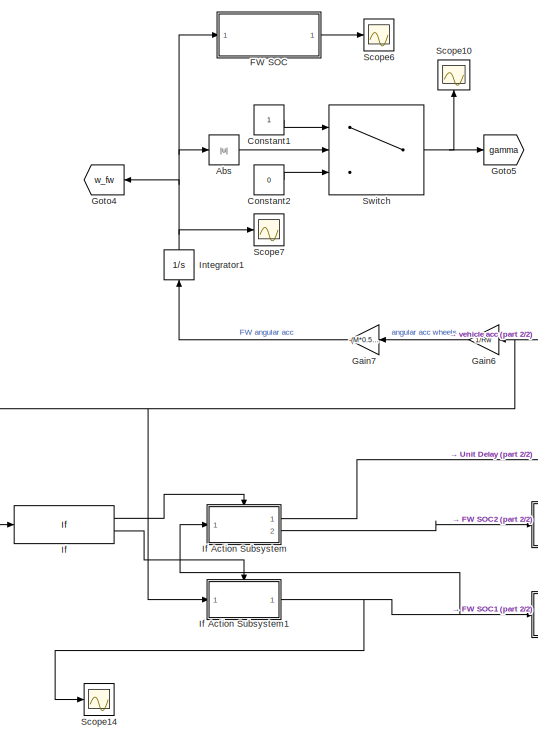
[diagram: root canvas - part 1/2, middle left region]
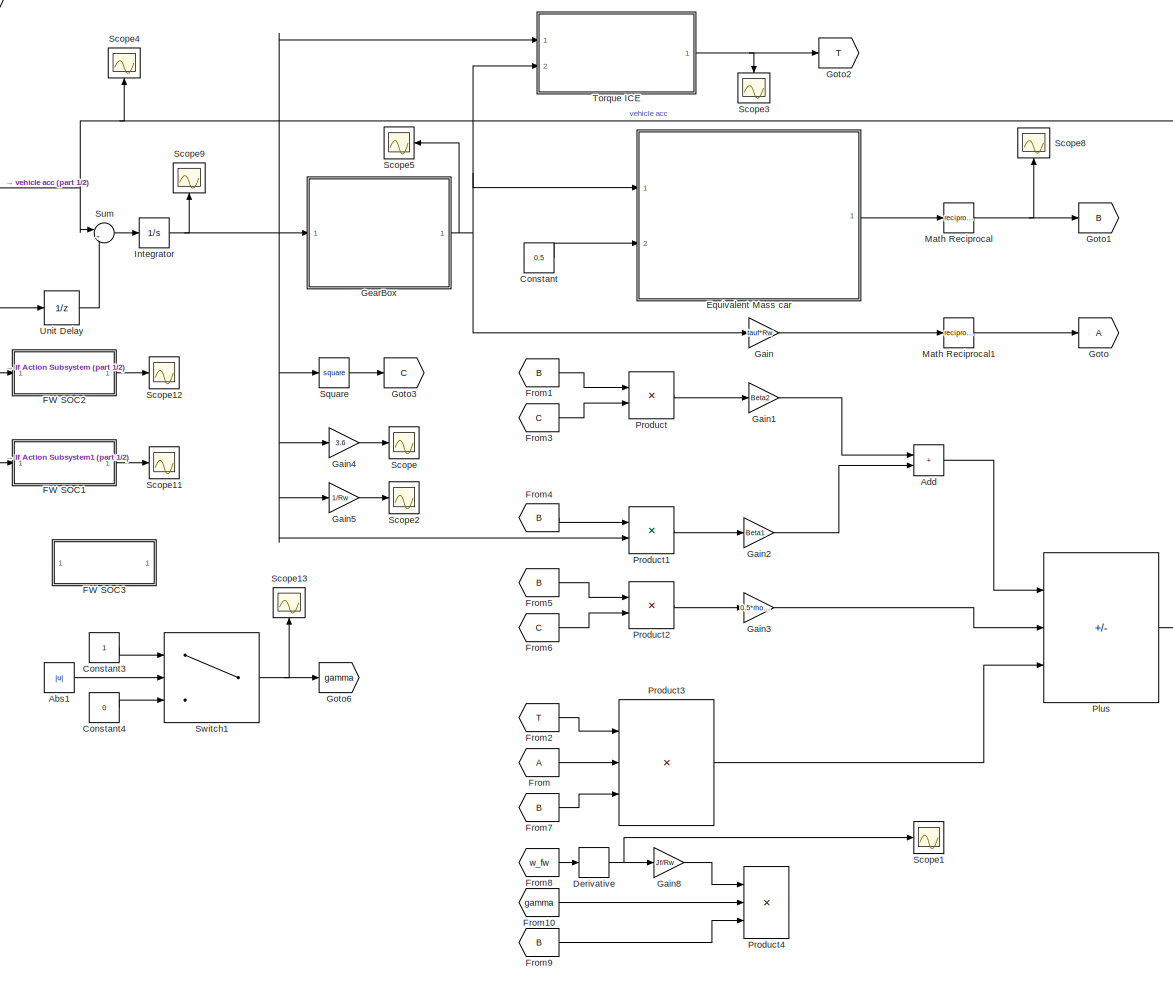
[diagram: root canvas - part 2/2, center side, full height]
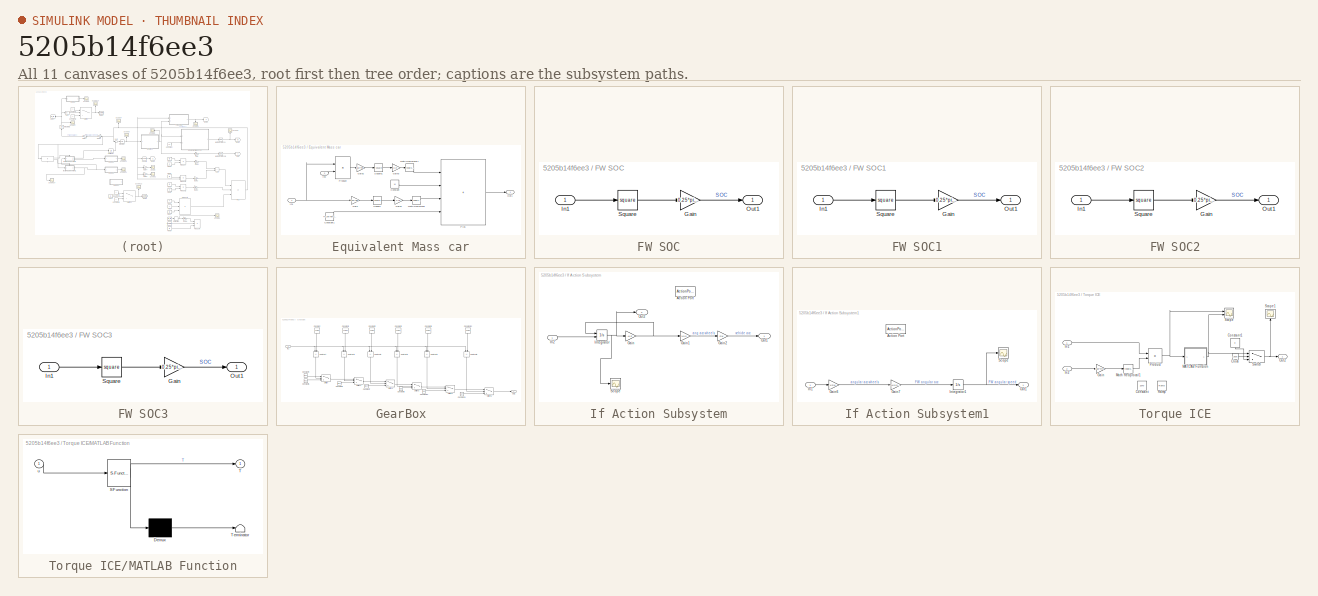
[diagram: thumbnail index - all 11 canvases of the model, root first then tree order]
MODEL slx_5205b14f6ee3
KIND model
CONFIG AbsTol = auto
CONFIG EnableMultiTasking = off
CONFIG FixedStep = auto
CONFIG MaxStep = auto
CONFIG MinStep = auto
CONFIG RelTol = 1e-3
CONFIG SampleTimeConstraint = Unconstrained
CONFIG Solver = VariableStepAuto
CONFIG SolverName = VariableStepAuto
CONFIG StartTime = 0.0
CONFIG StopTime = 20
BLOCK [Abs] Abs
  Commented = on
  SaturateOnIntegerOverflow = off
BLOCK [Abs] Abs1
  Commented = on
  SaturateOnIntegerOverflow = off
BLOCK [Sum] Add
  IconShape = rectangular
  Ports = [2, 1]
BLOCK [Constant] Constant
  Value = 0.5
BLOCK [Constant] Constant1
  Commented = on
BLOCK [Constant] Constant2
  Commented = on
  Value = 0
BLOCK [Constant] Constant3
  Commented = on
BLOCK [Constant] Constant4
  Commented = on
  Value = 0
BLOCK [Derivative] Derivative
  Commented = on
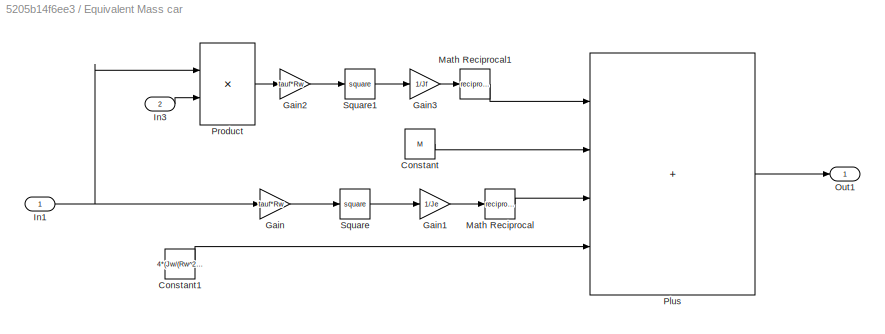
BLOCK [SubSystem] Equivalent Mass car
  Ports = [2, 1]
  RequestExecContextInheritance = off
BLOCK [Constant] Equivalent Mass car/Constant
  Value = M
BLOCK [Constant] Equivalent Mass car/Constant1
  Value = 4*(Jw/(Rw^2))
BLOCK [Gain] Equivalent Mass car/Gain
  Gain = tauf*Rw
BLOCK [Gain] Equivalent Mass car/Gain1
  Gain = 1/Je
BLOCK [Gain] Equivalent Mass car/Gain2
  Gain = tauf*Rw
BLOCK [Gain] Equivalent Mass car/Gain3
  Gain = 1/Jf
BLOCK [Inport] Equivalent Mass car/In1
BLOCK [Inport] Equivalent Mass car/In3
  Port = 2
BLOCK [Math] Equivalent Mass car/Math Reciprocal
  Operator = reciprocal
  Ports = [1, 1]
  SignedPower = on
BLOCK [Math] Equivalent Mass car/Math Reciprocal1
  Operator = reciprocal
  Ports = [1, 1]
  SignedPower = on
BLOCK [Outport] Equivalent Mass car/Out1
  VectorParamsAs1DForOutWhenUnconnected = off
BLOCK [Sum] Equivalent Mass car/Plus
  IconShape = rectangular
  Inputs = ++++
  Ports = [4, 1]
BLOCK [Product] Equivalent Mass car/Product
  Ports = [2, 1]
BLOCK [Math] Equivalent Mass car/Square
  Operator = square
  Ports = [1, 1]
  SignedPower = on
BLOCK [Math] Equivalent Mass car/Square1
  Operator = square
  Ports = [1, 1]
  SignedPower = on
BLOCK [SubSystem] FW SOC
  Commented = on
  Ports = [1, 1]
  RequestExecContextInheritance = off
BLOCK [Gain] FW SOC/Gain
  Gain = 0.25*pi*h*rho_fw*(r_o^4 - r_i^4)
BLOCK [Inport] FW SOC/In1
BLOCK [Outport] FW SOC/Out1
BLOCK [Math] FW SOC/Square
  Operator = square
  Ports = [1, 1]
BLOCK [SubSystem] FW SOC1
  Ports = [1, 1]
  RequestExecContextInheritance = off
BLOCK [Gain] FW SOC1/Gain
  Gain = 0.25*pi*h*rho_fw*(r_o^4 - r_i^4)
BLOCK [Inport] FW SOC1/In1
BLOCK [Outport] FW SOC1/Out1
BLOCK [Math] FW SOC1/Square
  Operator = square
  Ports = [1, 1]
BLOCK [SubSystem] FW SOC2
  Ports = [1, 1]
  RequestExecContextInheritance = off
BLOCK [Gain] FW SOC2/Gain
  Gain = 0.25*pi*h*rho_fw*(r_o^4 - r_i^4)
BLOCK [Inport] FW SOC2/In1
BLOCK [Outport] FW SOC2/Out1
BLOCK [Math] FW SOC2/Square
  Operator = square
  Ports = [1, 1]
BLOCK [SubSystem] FW SOC3
  Commented = on
  Ports = [1, 1]
  RequestExecContextInheritance = off
BLOCK [Gain] FW SOC3/Gain
  Gain = 0.25*pi*h*rho_fw*(r_o^4 - r_i^4)
BLOCK [Inport] FW SOC3/In1
BLOCK [Outport] FW SOC3/Out1
BLOCK [Math] FW SOC3/Square
  Operator = square
  Ports = [1, 1]
BLOCK [From] From
BLOCK [From] From1
  GotoTag = B
BLOCK [From] From10
  Commented = on
  GotoTag = gamma
BLOCK [From] From2
  GotoTag = T
BLOCK [From] From3
  GotoTag = C
BLOCK [From] From4
  GotoTag = B
BLOCK [From] From5
  GotoTag = B
BLOCK [From] From6
  GotoTag = C
BLOCK [From] From7
  GotoTag = B
BLOCK [From] From8
  Commented = on
  GotoTag = w_fw
BLOCK [From] From9
  Commented = on
  GotoTag = B
BLOCK [Gain] Gain
  Gain = tauf*Rw
BLOCK [Gain] Gain1
  Gain = Beta2
BLOCK [Gain] Gain2
  Gain = Beta1
BLOCK [Gain] Gain3
  Gain = 0.5*rho*Sf*Cx
BLOCK [Gain] Gain4
  Gain = 3.6
BLOCK [Gain] Gain5
  Gain = 1/Rw
BLOCK [Gain] Gain6
  Commented = on
  Gain = 1/Rw
  NameLocation = top
BLOCK [Gain] Gain7
  Commented = on
  Gain = -(M*0.5*Rw^2)/Jf
  NameLocation = top
BLOCK [Gain] Gain8
  Commented = on
  Gain = Jf/Rw
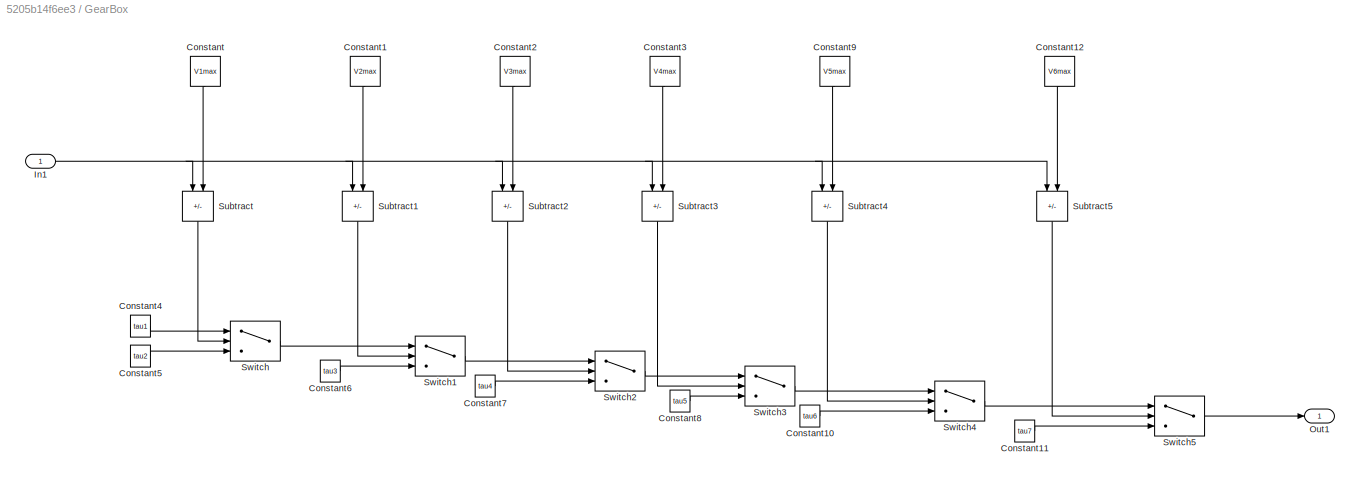
BLOCK [SubSystem] GearBox
  Ports = [1, 1]
  RequestExecContextInheritance = off
BLOCK [Constant] GearBox/Constant
  NameLocation = left
  Value = V1max
BLOCK [Constant] GearBox/Constant1
  NameLocation = left
  Value = V2max
BLOCK [Constant] GearBox/Constant10
  Value = tau6
BLOCK [Constant] GearBox/Constant11
  Value = tau7
BLOCK [Constant] GearBox/Constant12
  NameLocation = left
  Value = V6max
BLOCK [Constant] GearBox/Constant2
  NameLocation = left
  Value = V3max
BLOCK [Constant] GearBox/Constant3
  NameLocation = left
  Value = V4max
BLOCK [Constant] GearBox/Constant4
  Value = tau1
BLOCK [Constant] GearBox/Constant5
  Value = tau2
BLOCK [Constant] GearBox/Constant6
  Value = tau3
BLOCK [Constant] GearBox/Constant7
  Value = tau4
BLOCK [Constant] GearBox/Constant8
  Value = tau5
BLOCK [Constant] GearBox/Constant9
  NameLocation = left
  Value = V5max
BLOCK [Inport] GearBox/In1
BLOCK [Outport] GearBox/Out1
  VectorParamsAs1DForOutWhenUnconnected = off
BLOCK [Sum] GearBox/Subtract
  IconShape = rectangular
  Inputs = -+
  NameLocation = left
  Ports = [2, 1]
BLOCK [Sum] GearBox/Subtract1
  IconShape = rectangular
  Inputs = -+
  NameLocation = left
  Ports = [2, 1]
BLOCK [Sum] GearBox/Subtract2
  IconShape = rectangular
  Inputs = -+
  NameLocation = left
  Ports = [2, 1]
BLOCK [Sum] GearBox/Subtract3
  IconShape = rectangular
  Inputs = -+
  NameLocation = left
  Ports = [2, 1]
BLOCK [Sum] GearBox/Subtract4
  IconShape = rectangular
  Inputs = -+
  NameLocation = left
  Ports = [2, 1]
BLOCK [Sum] GearBox/Subtract5
  IconShape = rectangular
  Inputs = -+
  NameLocation = left
  Ports = [2, 1]
BLOCK [Switch] GearBox/Switch
  Criteria = u2 > Threshold
  InputSameDT = off
  SaturateOnIntegerOverflow = off
BLOCK [Switch] GearBox/Switch1
  Criteria = u2 > Threshold
  InputSameDT = off
  SaturateOnIntegerOverflow = off
BLOCK [Switch] GearBox/Switch2
  Criteria = u2 > Threshold
  InputSameDT = off
  SaturateOnIntegerOverflow = off
BLOCK [Switch] GearBox/Switch3
  Criteria = u2 > Threshold
  InputSameDT = off
  SaturateOnIntegerOverflow = off
BLOCK [Switch] GearBox/Switch4
  Criteria = u2 > Threshold
  InputSameDT = off
  SaturateOnIntegerOverflow = off
BLOCK [Switch] GearBox/Switch5
  Criteria = u2 > Threshold
  InputSameDT = off
  SaturateOnIntegerOverflow = off
BLOCK [Goto] Goto
BLOCK [Goto] Goto1
  GotoTag = B
BLOCK [Goto] Goto2
  GotoTag = T
BLOCK [Goto] Goto3
  GotoTag = C
BLOCK [Goto] Goto4
  Commented = on
  GotoTag = w_fw
  NameLocation = top
BLOCK [Goto] Goto5
  Commented = on
  GotoTag = gamma
BLOCK [Goto] Goto6
  Commented = on
  GotoTag = gamma
BLOCK [If] If
  IfExpression = u1 >= 0
  Ports = [1, 2]
BLOCK [SubSystem] If Action Subsystem
  Ports = [1, 2, 0, 0, 0, 0, 0, 1]
  RequestExecContextInheritance = off
  TreatAsAtomicUnit = on
BLOCK [ActionPort] If Action Subsystem/Action Port
  ActionPortLabel = if(u1 >= 0 )
BLOCK [Gain] If Action Subsystem/Gain
  Gain = -k/Jf
BLOCK [Gain] If Action Subsystem/Gain1
  Gain = 1/0.5
BLOCK [Gain] If Action Subsystem/Gain2
  Gain = Rw
BLOCK [Inport] If Action Subsystem/In2
BLOCK [Integrator] If Action Subsystem/Integrator
  InitialCondition = w_fw_max
  InitialConditionSource = external
  Ports = [2, 1]
BLOCK [Outport] If Action Subsystem/Out1
BLOCK [Outport] If Action Subsystem/Out2
  Port = 2
BLOCK [Scope] If Action Subsystem/Scope
  Floating = off
  NumInputPorts = 1
  Ports = [1]
  ScopeSpecificationString = Simulink.scopes.TimeScopeBlockCfg('CurrentConfiguration', extmgr.ConfigurationSet(extmgr.Configuration('Core','General UI',true),extmgr.Configuration('Core','Source UI',true),extmgr.Configuration('Sources','WiredSimulink',true,'DataLoggingVariableName','ScopeData13'),extmgr.Configuration('Visuals','Time Domain',true,'SerializedDisplays',{struct('MinYLimReal','53409.2547','MaxYLimReal','95765.66366...<+1494ch>
BLOCK [SubSystem] If Action Subsystem1
  Ports = [1, 1, 0, 0, 0, 0, 0, 1]
  RequestExecContextInheritance = off
  TreatAsAtomicUnit = on
BLOCK [ActionPort] If Action Subsystem1/Action Port
  ActionPortLabel = else
BLOCK [Gain] If Action Subsystem1/Gain6
  Gain = 1/Rw
BLOCK [Gain] If Action Subsystem1/Gain7
  Gain = -(M*0.5*Rw^2)/Jf
BLOCK [Inport] If Action Subsystem1/In1
BLOCK [Integrator] If Action Subsystem1/Integrator1
  Ports = [1, 1]
BLOCK [Outport] If Action Subsystem1/Out1
BLOCK [Scope] If Action Subsystem1/Scope
  Floating = off
  NumInputPorts = 1
  Ports = [1]
  ScopeSpecificationString = Simulink.scopes.TimeScopeBlockCfg('CurrentConfiguration', extmgr.ConfigurationSet(extmgr.Configuration('Core','General UI',true),extmgr.Configuration('Core','Source UI',true),extmgr.Configuration('Sources','WiredSimulink',true,'DataLoggingVariableName','ScopeData9'),extmgr.Configuration('Visuals','Time Domain',true,'SerializedDisplays',{struct('MinYLimReal','-9485.78445','MaxYLimReal','85372.06005...<+1426ch>
BLOCK [Integrator] Integrator
  InitialCondition = 42
  Ports = [1, 1]
BLOCK [Integrator] Integrator1
  Commented = on
  NameLocation = right
  Ports = [1, 1]
BLOCK [Math] Math Reciprocal
  Operator = reciprocal
  Ports = [1, 1]
  SignedPower = on
BLOCK [Math] Math Reciprocal1
  Operator = reciprocal
  Ports = [1, 1]
  SignedPower = on
BLOCK [Sum] Plus
  IconShape = rectangular
  Inputs = --+
  Ports = [3, 1]
BLOCK [Product] Product
  Ports = [2, 1]
BLOCK [Product] Product1
  Ports = [2, 1]
BLOCK [Product] Product2
  Ports = [2, 1]
BLOCK [Product] Product3
  Inputs = 3
  Ports = [3, 1]
BLOCK [Product] Product4
  Commented = on
  Inputs = 3
  Ports = [3, 1]
BLOCK [Scope] Scope
  Floating = off
  NumInputPorts = 1
  Ports = [1]
  ScopeSpecificationString = Simulink.scopes.TimeScopeBlockCfg('CurrentConfiguration', extmgr.ConfigurationSet(extmgr.Configuration('Core','General UI',true),extmgr.Configuration('Core','Source UI',true),extmgr.Configuration('Sources','WiredSimulink',true),extmgr.Configuration('Visuals','Time Domain',true,'SerializedDisplays',{struct('MinYLimReal','-76.01139','MaxYLimReal','1454.35268','YLabelReal','','MinYLimMag','0.00000','...<+1387ch>
BLOCK [Scope] Scope1
  Commented = on
  Floating = off
  NumInputPorts = 1
  Ports = [1]
  ScopeSpecificationString = Simulink.scopes.TimeScopeBlockCfg('CurrentConfiguration', extmgr.ConfigurationSet(extmgr.Configuration('Core','General UI',true),extmgr.Configuration('Core','Source UI',true),extmgr.Configuration('Sources','WiredSimulink',true,'DataLoggingVariableName','ScopeData5'),extmgr.Configuration('Visuals','Time Domain',true,'SerializedDisplays',{struct('MinYLimReal','-86171.60784','MaxYLimReal','20463.6862...<+1445ch>
BLOCK [Scope] Scope10
  Commented = on
  Floating = off
  NameLocation = right
  NumInputPorts = 1
  Ports = [1]
  ScopeSpecificationString = Simulink.scopes.TimeScopeBlockCfg('CurrentConfiguration', extmgr.ConfigurationSet(extmgr.Configuration('Core','General UI',true),extmgr.Configuration('Core','Source UI',true),extmgr.Configuration('Sources','WiredSimulink',true,'DataLoggingVariableName','ScopeData6'),extmgr.Configuration('Visuals','Time Domain',true,'SerializedDisplays',{struct('MinYLimReal','-0.10109','MaxYLimReal','1.14891','YLab...<+1468ch>
BLOCK [Scope] Scope11
  Floating = off
  NumInputPorts = 1
  Ports = [1]
  ScopeSpecificationString = Simulink.scopes.TimeScopeBlockCfg('CurrentConfiguration', extmgr.ConfigurationSet(extmgr.Configuration('Core','General UI',true),extmgr.Configuration('Core','Source UI',true),extmgr.Configuration('Sources','WiredSimulink',true,'DataLoggingVariableName','ScopeData7'),extmgr.Configuration('Visuals','Time Domain',true,'SerializedDisplays',{struct('MinYLimReal','-12015702.53785','MaxYLimReal','1081413...<+1501ch>
BLOCK [Scope] Scope12
  Floating = off
  NumInputPorts = 1
  Ports = [1]
  ScopeSpecificationString = Simulink.scopes.TimeScopeBlockCfg('CurrentConfiguration', extmgr.ConfigurationSet(extmgr.Configuration('Core','General UI',true),extmgr.Configuration('Core','Source UI',true),extmgr.Configuration('Sources','WiredSimulink',true,'DataLoggingVariableName','ScopeData10'),extmgr.Configuration('Visuals','Time Domain',true,'SerializedDisplays',{struct('MinYLimReal','-1.00000','MaxYLimReal','1.00000','YLa...<+1444ch>
BLOCK [Scope] Scope13
  Commented = on
  Floating = off
  NameLocation = right
  NumInputPorts = 1
  Ports = [1]
  ScopeSpecificationString = Simulink.scopes.TimeScopeBlockCfg('CurrentConfiguration', extmgr.ConfigurationSet(extmgr.Configuration('Core','General UI',true),extmgr.Configuration('Core','Source UI',true),extmgr.Configuration('Sources','WiredSimulink',true,'DataLoggingVariableName','ScopeData11'),extmgr.Configuration('Visuals','Time Domain',true,'SerializedDisplays',{struct('MinYLimReal','-0.10109','MaxYLimReal','1.14891','YLa...<+1469ch>
BLOCK [Scope] Scope14
  Floating = off
  NumInputPorts = 1
  Ports = [1]
  ScopeSpecificationString = Simulink.scopes.TimeScopeBlockCfg('CurrentConfiguration', extmgr.ConfigurationSet(extmgr.Configuration('Core','General UI',true),extmgr.Configuration('Core','Source UI',true),extmgr.Configuration('Sources','WiredSimulink',true,'DataLoggingVariableName','ScopeData12'),extmgr.Configuration('Visuals','Time Domain',true,'SerializedDisplays',{struct('MinYLimReal','-9485.78445','MaxYLimReal','85372.0600...<+1485ch>
BLOCK [Scope] Scope2
  Floating = off
  NumInputPorts = 1
  Ports = [1]
  ScopeSpecificationString = Simulink.scopes.TimeScopeBlockCfg('CurrentConfiguration', extmgr.ConfigurationSet(extmgr.Configuration('Core','General UI',true),extmgr.Configuration('Core','Source UI',true),extmgr.Configuration('Sources','WiredSimulink',true,'DataLoggingVariableName','ScopeData2'),extmgr.Configuration('Visuals','Time Domain',true,'SerializedDisplays',{struct('MinYLimReal','-2.87127','MaxYLimReal','25.84143','YLa...<+1387ch>
BLOCK [Scope] Scope3
  Floating = off
  NameLocation = left
  NumInputPorts = 1
  Ports = [1]
  ScopeSpecificationString = Simulink.scopes.TimeScopeBlockCfg('CurrentConfiguration', extmgr.ConfigurationSet(extmgr.Configuration('Core','General UI',true),extmgr.Configuration('Core','Source UI',true),extmgr.Configuration('Sources','WiredSimulink',true,'DataLoggingVariableName','ScopeData3'),extmgr.Configuration('Visuals','Time Domain',true,'SerializedDisplays',{struct('MinYLimReal','-85.37312','MaxYLimReal','768.35804','Y...<+1427ch>
BLOCK [Scope] Scope4
  Floating = off
  NameLocation = right
  NumInputPorts = 1
  Ports = [1]
  ScopeSpecificationString = Simulink.scopes.TimeScopeBlockCfg('CurrentConfiguration', extmgr.ConfigurationSet(extmgr.Configuration('Core','General UI',true),extmgr.Configuration('Core','Source UI',true),extmgr.Configuration('Sources','WiredSimulink',true,'DataLoggingVariableName','ScopeData4'),extmgr.Configuration('Visuals','Time Domain',true,'SerializedDisplays',{struct('MinYLimReal','7.022','MaxYLimReal','15.22572','YLabel...<+1468ch>
BLOCK [Scope] Scope5
  Floating = off
  NameLocation = top
  NumInputPorts = 1
  Ports = [1]
  ScopeSpecificationString = Simulink.scopes.TimeScopeBlockCfg('CurrentConfiguration', extmgr.ConfigurationSet(extmgr.Configuration('Core','General UI',true),extmgr.Configuration('Core','Source UI',true),extmgr.Configuration('Sources','WiredSimulink',true,'DataLoggingVariableName','ScopeData5'),extmgr.Configuration('Visuals','Time Domain',true,'SerializedDisplays',{struct('MinYLimReal','0.1841','MaxYLimReal','1.58985','YLabel...<+1409ch>
BLOCK [Scope] Scope6
  Commented = on
  Floating = off
  NumInputPorts = 1
  Ports = [1]
  ScopeSpecificationString = Simulink.scopes.TimeScopeBlockCfg('CurrentConfiguration', extmgr.ConfigurationSet(extmgr.Configuration('Core','General UI',true),extmgr.Configuration('Core','Source UI',true),extmgr.Configuration('Sources','WiredSimulink',true,'DataLoggingVariableName','ScopeData1'),extmgr.Configuration('Visuals','Time Domain',true,'SerializedDisplays',{struct('MinYLimReal','-61127048.12666','MaxYLimReal','5501434...<+1525ch>
BLOCK [Scope] Scope7
  Commented = on
  Floating = off
  NumInputPorts = 1
  Ports = [1]
  ScopeSpecificationString = Simulink.scopes.TimeScopeBlockCfg('CurrentConfiguration', extmgr.ConfigurationSet(extmgr.Configuration('Core','General UI',true),extmgr.Configuration('Core','Source UI',true),extmgr.Configuration('Sources','WiredSimulink',true,'DataLoggingVariableName','ScopeData2'),extmgr.Configuration('Visuals','Time Domain',true,'SerializedDisplays',{struct('MinYLimReal','-202610.94046','MaxYLimReal','111886.29...<+1510ch>
BLOCK [Scope] Scope8
  Floating = off
  NameLocation = right
  NumInputPorts = 1
  Ports = [1]
  ScopeSpecificationString = Simulink.scopes.TimeScopeBlockCfg('CurrentConfiguration', extmgr.ConfigurationSet(extmgr.Configuration('Core','General UI',true),extmgr.Configuration('Core','Source UI',true),extmgr.Configuration('Sources','WiredSimulink',true,'DataLoggingVariableName','ScopeData3'),extmgr.Configuration('Visuals','Time Domain',true,'SerializedDisplays',{struct('MinYLimReal','0.00107','MaxYLimReal','0.00136','YLabe...<+1445ch>
BLOCK [Scope] Scope9
  Floating = off
  NameLocation = right
  NumInputPorts = 1
  Ports = [1]
  ScopeSpecificationString = Simulink.scopes.TimeScopeBlockCfg('CurrentConfiguration', extmgr.ConfigurationSet(extmgr.Configuration('Core','General UI',true),extmgr.Configuration('Core','Source UI',true),extmgr.Configuration('Sources','WiredSimulink',true,'DataLoggingVariableName','ScopeData4'),extmgr.Configuration('Visuals','Time Domain',true,'SerializedDisplays',{struct('MinYLimReal','-21.11427','MaxYLimReal','403.98686','Y...<+1460ch>
BLOCK [Math] Square
  Operator = square
  Ports = [1, 1]
  SignedPower = on
BLOCK [Sum] Sum
  Inputs = |++
  Ports = [2, 1]
BLOCK [Switch] Switch
  Commented = on
  Criteria = u2 > Threshold
  InputSameDT = off
  SaturateOnIntegerOverflow = off
  Threshold = 0.3*w_fw_max
BLOCK [Switch] Switch1
  Commented = on
  Criteria = u2 > Threshold
  InputSameDT = off
  SaturateOnIntegerOverflow = off
  Threshold = 0.3*w_fw_max
BLOCK [SubSystem] Torque ICE
  Ports = [2, 1]
  RequestExecContextInheritance = off
BLOCK [Clock] Torque ICE/Clock
BLOCK [Constant] Torque ICE/Constant
  Commented = on
  Value = 1570
BLOCK [Constant] Torque ICE/Constant1
  NameLocation = left
  Value = 0
BLOCK [Gain] Torque ICE/Gain
  Gain = tauf*Rw
BLOCK [Inport] Torque ICE/In1
BLOCK [Inport] Torque ICE/In2
  Port = 2
BLOCK [SubSystem] Torque ICE/MATLAB Function
  ErrorFcn = Stateflow.Translate.translate
  PermitHierarchicalResolution = ExplicitOnly
  Ports = [1, 1]
  RequestExecContextInheritance = off
  SFBlockType = MATLAB Function
  TreatAsAtomicUnit = on
BLOCK [Demux] Torque ICE/MATLAB Function/ Demux 
  Outputs = 1
  Ports = [1, 1]
BLOCK [S-Function] Torque ICE/MATLAB Function/ SFunction 
  EnableBusSupport = on
  FunctionName = sf_sfun
  PortCounts = [1 2]
  Ports = [1, 2]
  SFcnIsStateOwnerBlock = off
  SFunctionDeploymentMode = off
  Tag = Stateflow S-Function 1
BLOCK [Terminator] Torque ICE/MATLAB Function/ Terminator 
BLOCK [Outport] Torque ICE/MATLAB Function/T
  VectorParamsAs1DForOutWhenUnconnected = off
BLOCK [Inport] Torque ICE/MATLAB Function/u
BLOCK [Math] Torque ICE/Math Reciprocal1
  Operator = reciprocal
  Ports = [1, 1]
  SignedPower = on
BLOCK [Outport] Torque ICE/Out2
  VectorParamsAs1DForOutWhenUnconnected = off
BLOCK [Product] Torque ICE/Product
  Ports = [2, 1]
BLOCK [Reference] Torque ICE/Ramp  REF=simulink/Sources/Ramp
  Commented = on
  Ports = [0, 1]
  SourceBlock = simulink/Sources/Ramp
  SourceProductBaseCode = SL
  SourceType = Ramp
BLOCK [Scope] Torque ICE/Scope
  Floating = off
  NumInputPorts = 2
  Ports = [2]
  ScopeSpecificationString = Simulink.scopes.TimeScopeBlockCfg('CurrentConfiguration', extmgr.ConfigurationSet(extmgr.Configuration('Core','General UI',true),extmgr.Configuration('Core','Source UI',true),extmgr.Configuration('Sources','WiredSimulink',true,'DataLoggingVariableName','ScopeData6'),extmgr.Configuration('Visuals','Time Domain',true,'SerializedDisplays',{struct('MinYLimReal','-117.8','MaxYLimReal','1060.2','YLabelR...<+2072ch>
BLOCK [Scope] Torque ICE/Scope1
  Floating = off
  NameLocation = right
  NumInputPorts = 1
  Ports = [1]
  ScopeSpecificationString = Simulink.scopes.TimeScopeBlockCfg('CurrentConfiguration', extmgr.ConfigurationSet(extmgr.Configuration('Core','General UI',true),extmgr.Configuration('Core','Source UI',true),extmgr.Configuration('Sources','WiredSimulink',true,'DataLoggingVariableName','ScopeData8'),extmgr.Configuration('Visuals','Time Domain',true,'SerializedDisplays',{struct('MinYLimReal','-1.00000','MaxYLimReal','1.00000','YLab...<+1365ch>
BLOCK [Switch] Torque ICE/Switch
  InputSameDT = off
  SaturateOnIntegerOverflow = off
  Threshold = 30
BLOCK [UnitDelay] Unit Delay
  HasFrameUpgradeWarning = on
  SampleTime = -1
LINE Abs1:1 -> Switch1:2
LINE Abs:1 -> Switch:2
LINE Add:1 -> Plus:1
LINE Constant1:1 -> Switch:1
LINE Constant2:1 -> Switch:3
LINE Constant3:1 -> Switch1:1
LINE Constant4:1 -> Switch1:3
LINE Constant:1 -> Equivalent Mass car:2
NET Derivative:1 -> Gain8:1, Scope1:1
LINE Equivalent Mass car/Constant1:1 -> Equivalent Mass car/Plus:4
LINE Equivalent Mass car/Constant:1 -> Equivalent Mass car/Plus:2
LINE Equivalent Mass car/Gain1:1 -> Equivalent Mass car/Math Reciprocal:1
LINE Equivalent Mass car/Gain2:1 -> Equivalent Mass car/Square1:1
LINE Equivalent Mass car/Gain3:1 -> Equivalent Mass car/Math Reciprocal1:1
LINE Equivalent Mass car/Gain:1 -> Equivalent Mass car/Square:1
NET Equivalent Mass car/In1:1 -> Equivalent Mass car/Gain:1, Equivalent Mass car/Product:1
LINE Equivalent Mass car/In3:1 -> Equivalent Mass car/Product:2
LINE Equivalent Mass car/Math Reciprocal1:1 -> Equivalent Mass car/Plus:1
LINE Equivalent Mass car/Math Reciprocal:1 -> Equivalent Mass car/Plus:3
LINE Equivalent Mass car/Plus:1 -> Equivalent Mass car/Out1:1
LINE Equivalent Mass car/Product:1 -> Equivalent Mass car/Gain2:1
LINE Equivalent Mass car/Square1:1 -> Equivalent Mass car/Gain3:1
LINE Equivalent Mass car/Square:1 -> Equivalent Mass car/Gain1:1
LINE Equivalent Mass car:1 -> Math Reciprocal:1
LINE FW SOC/Gain:1 -> FW SOC/Out1:1
LINE FW SOC/In1:1 -> FW SOC/Square:1
LINE FW SOC/Square:1 -> FW SOC/Gain:1
LINE FW SOC1/Gain:1 -> FW SOC1/Out1:1
LINE FW SOC1/In1:1 -> FW SOC1/Square:1
LINE FW SOC1/Square:1 -> FW SOC1/Gain:1
LINE FW SOC1:1 -> Scope11:1
LINE FW SOC2/Gain:1 -> FW SOC2/Out1:1
LINE FW SOC2/In1:1 -> FW SOC2/Square:1
LINE FW SOC2/Square:1 -> FW SOC2/Gain:1
LINE FW SOC2:1 -> Scope12:1
LINE FW SOC3/Gain:1 -> FW SOC3/Out1:1
LINE FW SOC3/In1:1 -> FW SOC3/Square:1
LINE FW SOC3/Square:1 -> FW SOC3/Gain:1
LINE FW SOC:1 -> Scope6:1
LINE From10:1 -> Product4:2
LINE From1:1 -> Product:1
LINE From2:1 -> Product3:1
LINE From3:1 -> Product:2
LINE From4:1 -> Product1:1
LINE From5:1 -> Product2:1
LINE From6:1 -> Product2:2
LINE From7:1 -> Product3:3
LINE From8:1 -> Derivative:1
LINE From9:1 -> Product4:3
LINE From:1 -> Product3:2
LINE Gain1:1 -> Add:1
LINE Gain2:1 -> Add:2
LINE Gain3:1 -> Plus:2
LINE Gain4:1 -> Scope:1
LINE Gain5:1 -> Scope2:1
LINE Gain6:1 -> Gain7:1
LINE Gain7:1 -> Integrator1:1
LINE Gain8:1 -> Product4:1
LINE Gain:1 -> Math Reciprocal1:1
LINE GearBox/Constant10:1 -> GearBox/Switch4:3
LINE GearBox/Constant11:1 -> GearBox/Switch5:3
LINE GearBox/Constant12:1 -> GearBox/Subtract5:2
LINE GearBox/Constant1:1 -> GearBox/Subtract1:2
LINE GearBox/Constant2:1 -> GearBox/Subtract2:2
LINE GearBox/Constant3:1 -> GearBox/Subtract3:2
LINE GearBox/Constant4:1 -> GearBox/Switch:1
LINE GearBox/Constant5:1 -> GearBox/Switch:3
LINE GearBox/Constant6:1 -> GearBox/Switch1:3
LINE GearBox/Constant7:1 -> GearBox/Switch2:3
LINE GearBox/Constant8:1 -> GearBox/Switch3:3
LINE GearBox/Constant9:1 -> GearBox/Subtract4:2
LINE GearBox/Constant:1 -> GearBox/Subtract:2
NET GearBox/In1:1 -> GearBox/Subtract1:1, GearBox/Subtract2:1, GearBox/Subtract3:1, GearBox/Subtract4:1, GearBox/Subtract5:1, GearBox/Subtract:1
LINE GearBox/Subtract1:1 -> GearBox/Switch1:2
LINE GearBox/Subtract2:1 -> GearBox/Switch2:2
LINE GearBox/Subtract3:1 -> GearBox/Switch3:2
LINE GearBox/Subtract4:1 -> GearBox/Switch4:2
LINE GearBox/Subtract5:1 -> GearBox/Switch5:2
LINE GearBox/Subtract:1 -> GearBox/Switch:2
LINE GearBox/Switch1:1 -> GearBox/Switch2:1
LINE GearBox/Switch2:1 -> GearBox/Switch3:1
LINE GearBox/Switch3:1 -> GearBox/Switch4:1
LINE GearBox/Switch4:1 -> GearBox/Switch5:1
LINE GearBox/Switch5:1 -> GearBox/Out1:1
LINE GearBox/Switch:1 -> GearBox/Switch1:1
NET GearBox:1 -> Equivalent Mass car:1, Gain:1, Scope5:1, Torque ICE:2
LINE If Action Subsystem/Gain1:1 -> If Action Subsystem/Gain2:1
LINE If Action Subsystem/Gain2:1 -> If Action Subsystem/Out1:1
NET If Action Subsystem/Gain:1 -> If Action Subsystem/Gain1:1, If Action Subsystem/Integrator:1
LINE If Action Subsystem/In2:1 -> If Action Subsystem/Integrator:2
NET If Action Subsystem/Integrator:1 -> If Action Subsystem/Gain:1, If Action Subsystem/Out2:1, If Action Subsystem/Scope:1
LINE If Action Subsystem1/Gain6:1 -> If Action Subsystem1/Gain7:1
LINE If Action Subsystem1/Gain7:1 -> If Action Subsystem1/Integrator1:1
LINE If Action Subsystem1/In1:1 -> If Action Subsystem1/Gain6:1
NET If Action Subsystem1/Integrator1:1 -> If Action Subsystem1/Out1:1, If Action Subsystem1/Scope:1
NET If Action Subsystem1:1 -> FW SOC1:1, If Action Subsystem:1, Scope14:1
LINE If Action Subsystem:1 -> Unit Delay:1
LINE If Action Subsystem:2 -> FW SOC2:1
LINE If:1 -> If Action Subsystem:ifaction
LINE If:2 -> If Action Subsystem1:ifaction
NET Integrator1:1 -> Abs:1, FW SOC:1, Goto4:1, Scope7:1
NET Integrator:1 -> Gain4:1, Gain5:1, GearBox:1, Product1:2, Scope9:1, Square:1, Torque ICE:1
LINE Math Reciprocal1:1 -> Goto:1
NET Math Reciprocal:1 -> Goto1:1, Scope8:1
NET Plus:1 -> Gain6:1, If Action Subsystem1:1, If:1, Scope4:1, Sum:1
LINE Product1:1 -> Gain2:1
LINE Product2:1 -> Gain3:1
LINE Product3:1 -> Plus:3
LINE Product:1 -> Gain1:1
LINE Square:1 -> Goto3:1
LINE Sum:1 -> Integrator:1
NET Switch1:1 -> Goto6:1, Scope13:1
NET Switch:1 -> Goto5:1, Scope10:1
LINE Torque ICE/Clock:1 -> Torque ICE/Switch:2
LINE Torque ICE/Constant1:1 -> Torque ICE/Switch:3
LINE Torque ICE/Gain:1 -> Torque ICE/Math Reciprocal1:1
LINE Torque ICE/In1:1 -> Torque ICE/Product:1
LINE Torque ICE/In2:1 -> Torque ICE/Gain:1
NET Torque ICE/MATLAB Function:1 -> Torque ICE/Scope:2, Torque ICE/Switch:1
LINE Torque ICE/Math Reciprocal1:1 -> Torque ICE/Product:2
NET Torque ICE/Product:1 -> Torque ICE/MATLAB Function:1, Torque ICE/Scope:1
NET Torque ICE/Switch:1 -> Torque ICE/Out2:1, Torque ICE/Scope1:1
NET Torque ICE:1 -> Goto2:1, Scope3:1
LINE Unit Delay:1 -> Sum:2
note: NET lines group one-source signal fan-out (src -> all destinations, sorted); 1:1 wires keep LINE
CHART Torque ICE/MATLAB Function states=1 transitions=1
  STATE_LABEL 'eML_blk_kernel()'
  STATE_LABEL 'SCRIPT:\nfunction T = TorqueICE(u)\n\n%T = a0+a1*u+a2*(u^2)+a3*(u^3);\nT = 88.48+1.41*u-(8.36e-4)*(u^2);\n\n'
CHART  states=0 transitions=0
